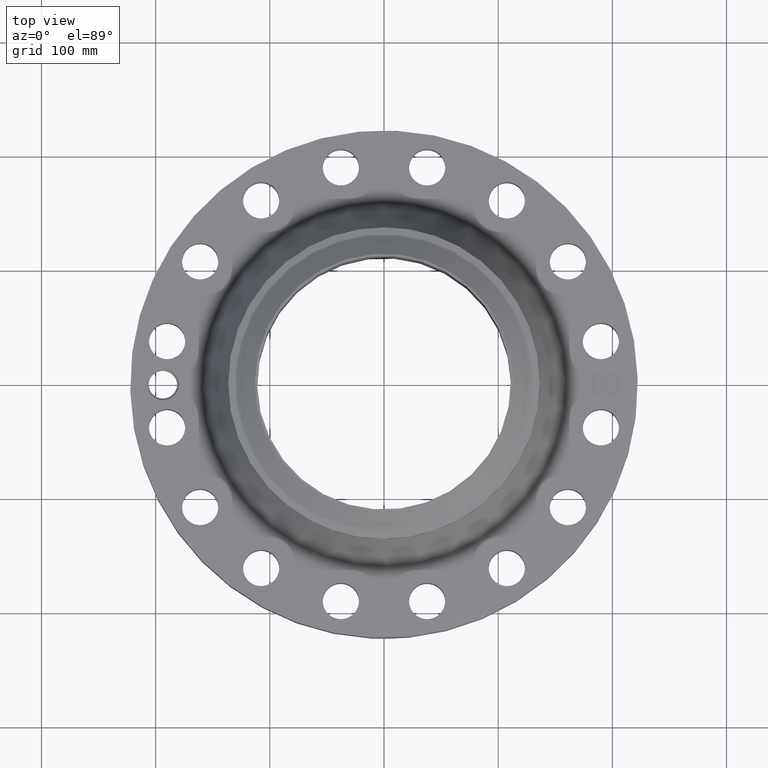
[diagram: clean part render]
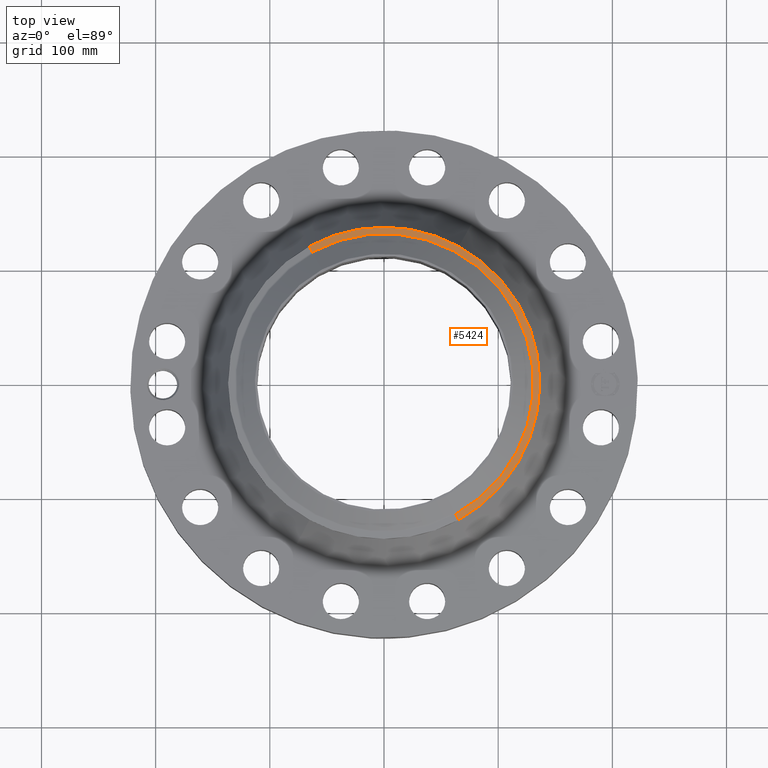
[diagram: same view with one face highlighted and labeled with its STEP entity id]
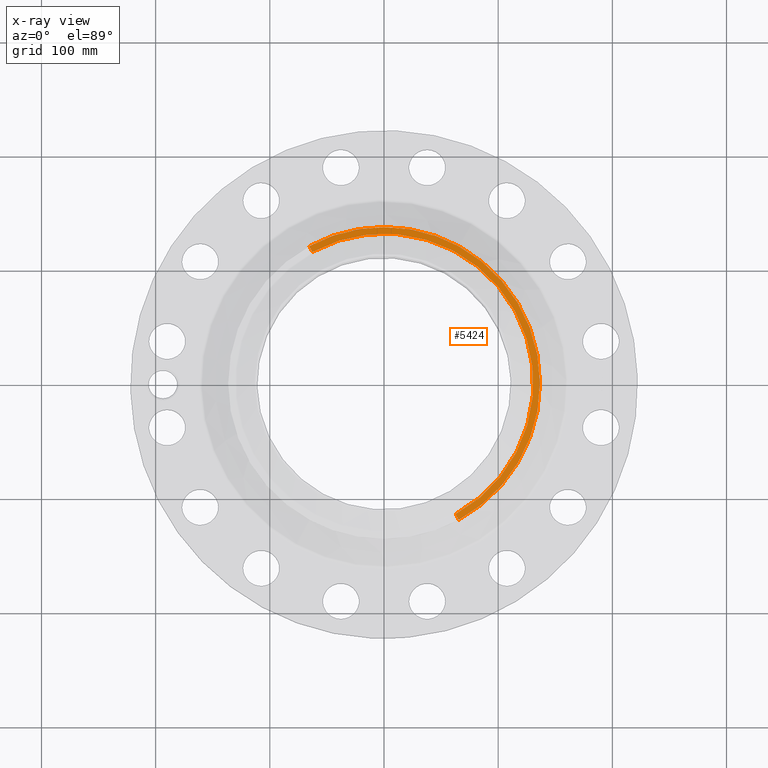
[diagram: x-ray of the same camera — body ghosted, the highlighted face saturated]
A machine part, top view. The second image highlights one B-rep face of the part: STEP entity #5424.
The next image is the same camera in x-ray: the body ghosted, the highlighted face saturated — about 0% of this face is hidden behind the body in this view.
In plain terms, the highlighted conical surface has half-angle 80 deg.
Its self-contained STEP definition (entity closure, byte-faithful):
#3968=AXIS2_PLACEMENT_3D('Circle Axis2P3D',#3966,#3967,$) ;
#3995=AXIS2_PLACEMENT_3D('Circle Axis2P3D',#3993,#3994,$) ;
#4795=AXIS2_PLACEMENT_3D('Circle Axis2P3D',#4793,#4794,$) ;
#5405=AXIS2_PLACEMENT_3D('Cone Axis2P3D',#5402,#5403,#5404) ;
#3963=CARTESIAN_POINT('Vertex',(2.57691227001,4.71700627018,4.57200584757)) ;
#3966=CARTESIAN_POINT('Axis2P3D Location',(0.,0.,4.57200584757)) ;
#3970=CARTESIAN_POINT('Vertex',(2.57691227001,-4.71700627018,4.57200584757)) ;
#3990=CARTESIAN_POINT('Vertex',(-2.57691227001,4.71700627018,4.57200584757)) ;
#3993=CARTESIAN_POINT('Axis2P3D Location',(0.,0.,4.57200584757)) ;
#4771=CARTESIAN_POINT('Vertex',(-2.46975769445,4.52086113529,4.61141601924)) ;
#4778=CARTESIAN_POINT('Vertex',(2.46975769445,-4.52086113529,4.61141601924)) ;
#4793=CARTESIAN_POINT('Axis2P3D Location',(0.,0.,4.61141601924)) ;
#5402=CARTESIAN_POINT('Axis2P3D Location',(0.,0.,4.61141601924)) ;
#5407=CARTESIAN_POINT('Line Origine',(-2.52333498223,4.61893370274,4.5917109334)) ;
#5412=CARTESIAN_POINT('Line Origine',(2.52333498223,-4.61893370274,4.5917109334)) ;
#3967=DIRECTION('Axis2P3D Direction',(0.,0.,-0.0393700787402)) ;
#3994=DIRECTION('Axis2P3D Direction',(0.,0.,-0.0393700787402)) ;
#4794=DIRECTION('Axis2P3D Direction',(0.,0.,0.0393700787402)) ;
#5403=DIRECTION('Axis2P3D Direction',(-0.,-0.,-0.0393700787402)) ;
#5404=DIRECTION('Axis2P3D XDirection',(0.0188750212049,-0.0345504945626,0.)) ;
#5408=DIRECTION('Vector Direction',(-0.0185882672208,0.0340255949157,-0.00683654242783)) ;
#5413=DIRECTION('Vector Direction',(0.0185882672208,-0.0340255949157,-0.00683654242783)) ;
#5409=VECTOR('Line Direction',#5408,0.0393700787402) ;
#5414=VECTOR('Line Direction',#5413,0.0393700787402) ;
#5418=ORIENTED_EDGE('',*,*,#5411,.F.) ;
#5419=ORIENTED_EDGE('',*,*,#4797,.F.) ;
#5420=ORIENTED_EDGE('',*,*,#5416,.T.) ;
#5421=ORIENTED_EDGE('',*,*,#3972,.T.) ;
#5422=ORIENTED_EDGE('',*,*,#3997,.F.) ;
#5424=ADVANCED_FACE('PartBody',(#5423),#5406,.T.) ;
#3969=CIRCLE('generated circle',#3968,5.37500000002) ;
#3996=CIRCLE('generated circle',#3995,5.37500000002) ;
#4796=CIRCLE('generated circle',#4795,5.15149380994) ;
#5406=CONICAL_SURFACE('Cone',#5405,5.15149380994,1.3962634016) ;
#3972=EDGE_CURVE('',#3971,#3964,#3969,.F.) ;
#3997=EDGE_CURVE('',#3991,#3964,#3996,.T.) ;
#4797=EDGE_CURVE('',#4779,#4772,#4796,.T.) ;
#5411=EDGE_CURVE('',#4772,#3991,#5410,.T.) ;
#5416=EDGE_CURVE('',#4779,#3971,#5415,.T.) ;
#5417=EDGE_LOOP('',(#5418,#5419,#5420,#5421,#5422)) ;
#5423=FACE_OUTER_BOUND('',#5417,.T.) ;
#5410=LINE('Line',#5407,#5409) ;
#5415=LINE('Line',#5412,#5414) ;
#3964=VERTEX_POINT('',#3963) ;
#3971=VERTEX_POINT('',#3970) ;
#3991=VERTEX_POINT('',#3990) ;
#4772=VERTEX_POINT('',#4771) ;
#4779=VERTEX_POINT('',#4778) ;